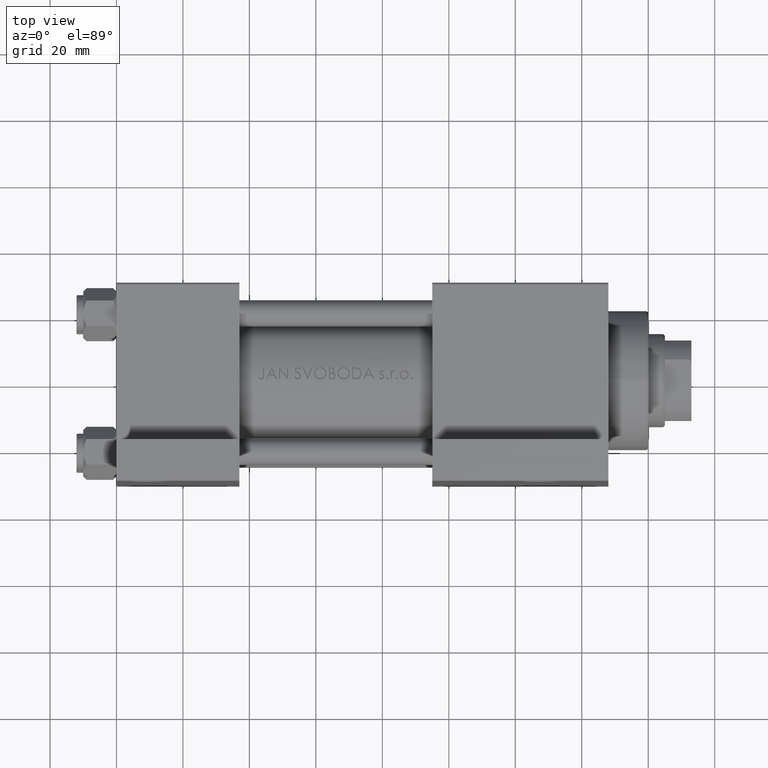
[diagram: clean part render]
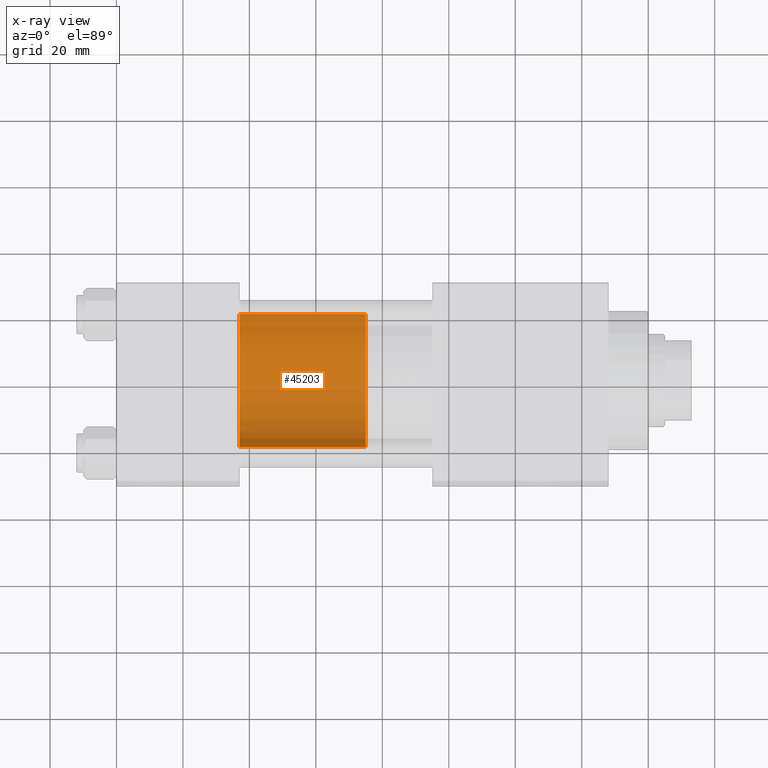
[diagram: x-ray — body ghosted, one internal face saturated and labeled with its STEP entity id]
A machine part, top view, then the same camera in x-ray: the body is ghosted and one INTERNAL B-rep face — a face not visible from any outside direction — is saturated and labeled: STEP entity #45203.
In plain terms, the highlighted cylindrical surface (partial cylindrical patch) has radius 20 mm, axis along (-1, 0, 0).
Its self-contained STEP definition (entity closure, byte-faithful):
#1127 = ORIENTED_EDGE ( 'NONE', *, *, #30903, .T. ) ;
#1132 = DIRECTION ( 'NONE',  ( -1.000000000000000000, 0.000000000000000000, 0.000000000000000000 ) ) ;
#2323 = DIRECTION ( 'NONE',  ( -0.000000000000000000, -0.000000000000000000, -1.000000000000000000 ) ) ;
#4476 = AXIS2_PLACEMENT_3D ( 'NONE', #41078, #41810, #1132 ) ;
#4658 = DIRECTION ( 'NONE',  ( 0.000000000000000000, 0.000000000000000000, 1.000000000000000000 ) ) ;
#5069 = DIRECTION ( 'NONE',  ( -0.000000000000000000, -0.000000000000000000, -1.000000000000000000 ) ) ;
#5764 = CARTESIAN_POINT ( 'NONE',  ( 20.00000000000000000, 2.449293598294706513E-15, 38.00000000000000000 ) ) ;
#8060 = VERTEX_POINT ( 'NONE', #20586 ) ;
#8245 = CARTESIAN_POINT ( 'NONE',  ( 0.000000000000000000, 0.000000000000000000, 38.00000000000000000 ) ) ;
#8957 = CIRCLE ( 'NONE', #11281, 20.00000000000000000 ) ;
#10405 = ORIENTED_EDGE ( 'NONE', *, *, #37087, .F. ) ;
#11281 = AXIS2_PLACEMENT_3D ( 'NONE', #8245, #4658, #45078 ) ;
#12210 = EDGE_CURVE ( 'NONE', #32544, #27129, #35122, .T. ) ;
#13332 = AXIS2_PLACEMENT_3D ( 'NONE', #25651, #32888, #43978 ) ;
#20102 = VERTEX_POINT ( 'NONE', #40087 ) ;
#20586 = CARTESIAN_POINT ( 'NONE',  ( -20.00000000000000000, 0.000000000000000000, 38.00000000000000000 ) ) ;
#22410 = ORIENTED_EDGE ( 'NONE', *, *, #44199, .F. ) ;
#23249 = FACE_OUTER_BOUND ( 'NONE', #30463, .T. ) ;
#25651 = CARTESIAN_POINT ( 'NONE',  ( 0.000000000000000000, 0.000000000000000000, 0.000000000000000000 ) ) ;
#26168 = VECTOR ( 'NONE', #5069, 1000.000000000000000 ) ;
#27129 = VERTEX_POINT ( 'NONE', #28342 ) ;
#28342 = CARTESIAN_POINT ( 'NONE',  ( 20.00000000000000000, 2.449293598294706513E-15, 0.000000000000000000 ) ) ;
#30463 = EDGE_LOOP ( 'NONE', ( #10405, #36698, #1127, #22410 ) ) ;
#30903 = EDGE_CURVE ( 'NONE', #27129, #20102, #36444, .T. ) ;
#31280 = CARTESIAN_POINT ( 'NONE',  ( 20.00000000000000000, 2.449293598294706513E-15, 38.00000000000000000 ) ) ;
#32544 = VERTEX_POINT ( 'NONE', #5764 ) ;
#32888 = DIRECTION ( 'NONE',  ( 0.000000000000000000, 0.000000000000000000, 1.000000000000000000 ) ) ;
#34426 = VECTOR ( 'NONE', #2323, 1000.000000000000000 ) ;
#34793 = LINE ( 'NONE', #35032, #34426 ) ;
#35032 = CARTESIAN_POINT ( 'NONE',  ( -20.00000000000000000, 0.000000000000000000, 38.00000000000000000 ) ) ;
#35122 = LINE ( 'NONE', #31280, #26168 ) ;
#36444 = CIRCLE ( 'NONE', #13332, 20.00000000000000000 ) ;
#36698 = ORIENTED_EDGE ( 'NONE', *, *, #12210, .T. ) ;
#37087 = EDGE_CURVE ( 'NONE', #32544, #8060, #8957, .T. ) ;
#37720 = CYLINDRICAL_SURFACE ( 'NONE', #4476, 20.00000000000000000 ) ;
#40087 = CARTESIAN_POINT ( 'NONE',  ( -20.00000000000000000, 0.000000000000000000, 0.000000000000000000 ) ) ;
#41078 = CARTESIAN_POINT ( 'NONE',  ( 0.000000000000000000, 0.000000000000000000, 38.00000000000000000 ) ) ;
#41810 = DIRECTION ( 'NONE',  ( -0.000000000000000000, -0.000000000000000000, -1.000000000000000000 ) ) ;
#43978 = DIRECTION ( 'NONE',  ( 1.000000000000000000, 0.000000000000000000, 0.000000000000000000 ) ) ;
#44199 = EDGE_CURVE ( 'NONE', #8060, #20102, #34793, .T. ) ;
#45078 = DIRECTION ( 'NONE',  ( 1.000000000000000000, 0.000000000000000000, 0.000000000000000000 ) ) ;
#45203 = ADVANCED_FACE ( 'NONE', ( #23249 ), #37720, .T. ) ;